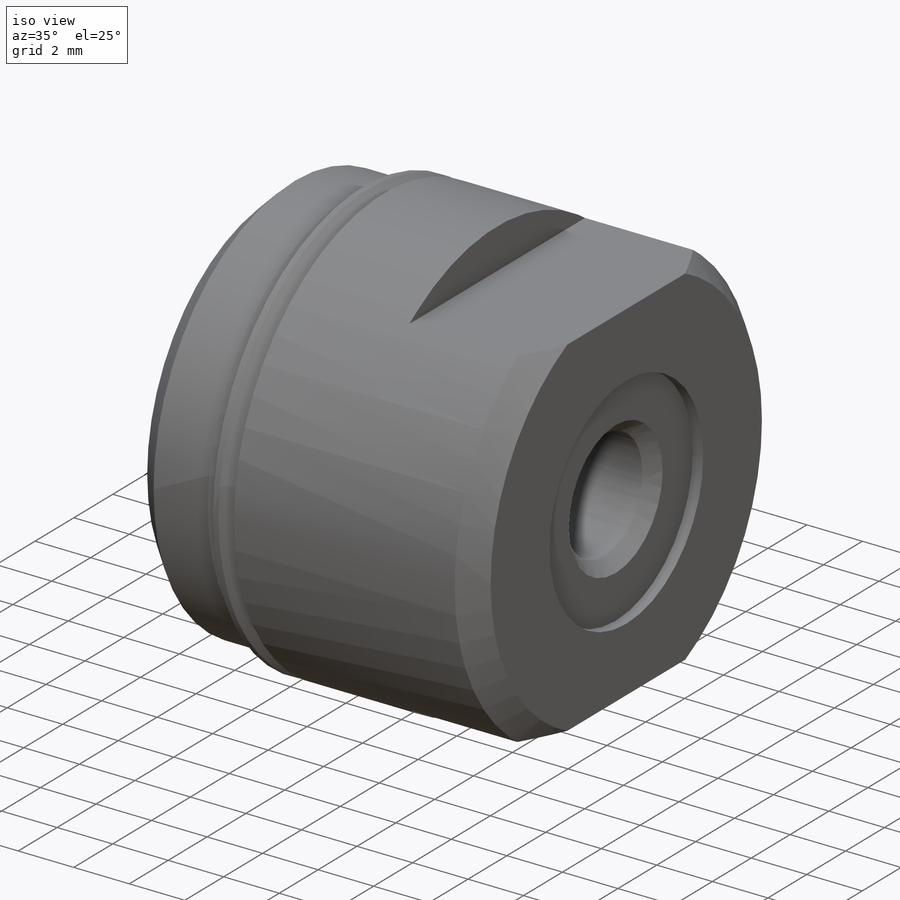
[diagram: iso view]
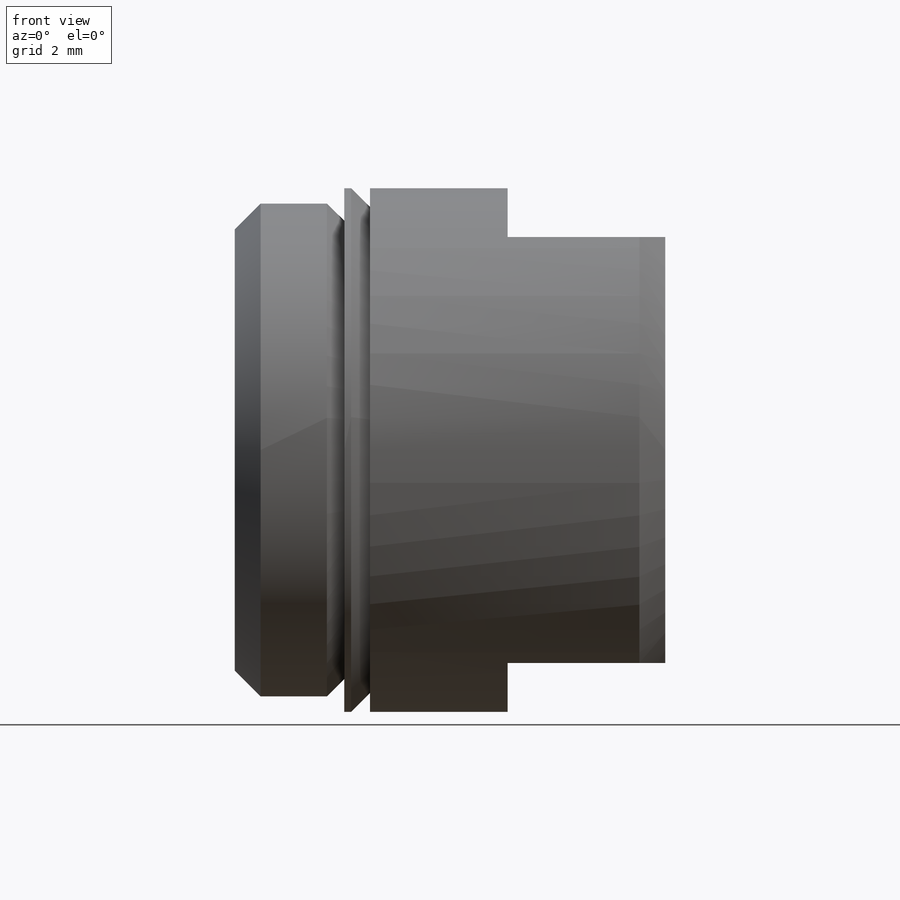
[diagram: front view]
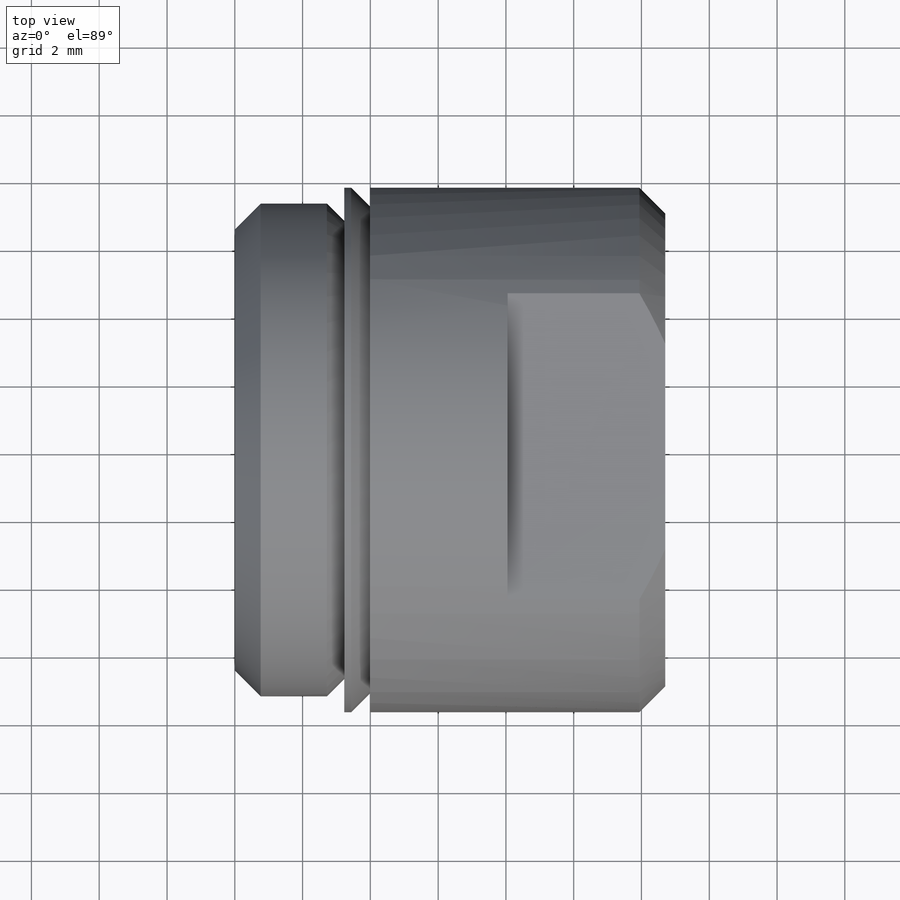
[diagram: top view]
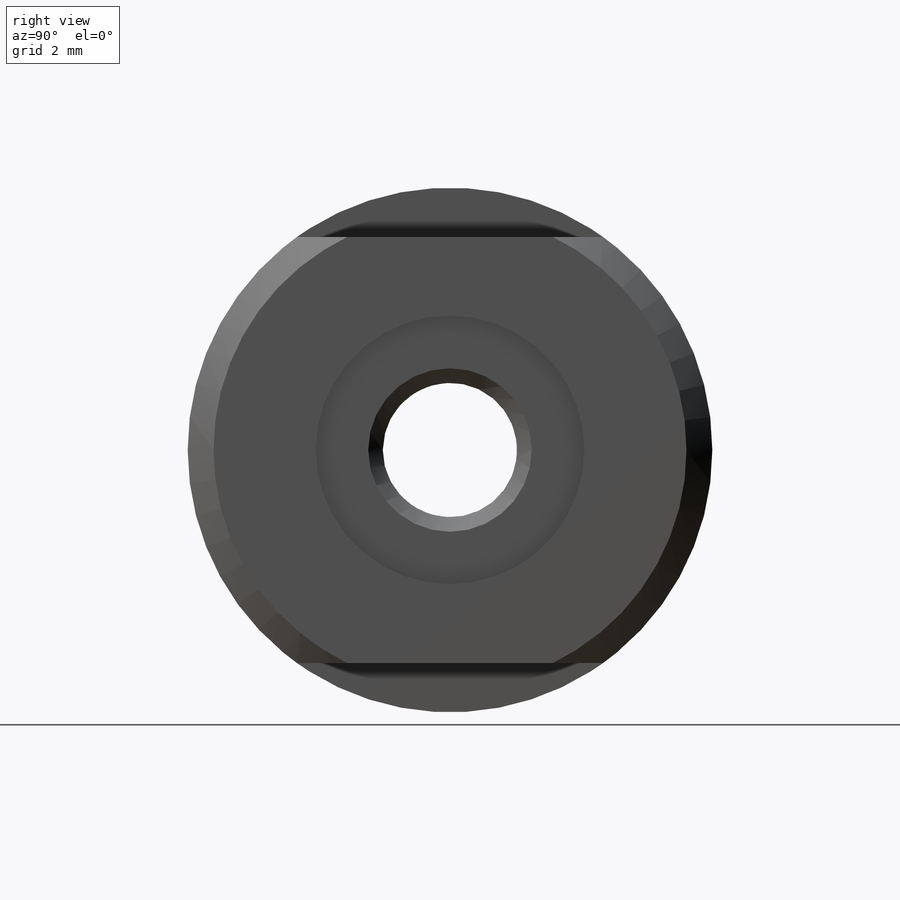
[diagram: right view]
SOLIDWORKS PART (.sldprt)
format: sldprt  version: not decoded by parser v0  size: 417,280 bytes
history: native  units: mm
features: plane x61, sketch x21, revolve x2, cut_revolve x2, material x1, thread x1, cut_extrude x1, extrude x1 (+61 scaffold rows collapsed)
feature tree (151):
  scaffold x61  (default folders/planes/origin — collapsed)
  material  "6061-T6 (SS)"
  sketch  "Sketch1"
  revolve  "Revolve1"  Angle=360deg
  sketch  "Sketch2"
  cut_revolve  "Cut-Revolve1"  Angle=360deg
  sketch  "Sketch3"
  cut_revolve  "Cut-Revolve2"  [1 undecoded]
  thread  "Cosmetic Thread1"  Diameter=5.08mm  [1 undecoded]
  plane  "Plane1"  Offset=12.7mm
  sketch  "Sketch4"
  cut_extrude  "Cut-Extrude1"  Depth=4.6482mm
  plane  "Plane2"  Offset=13.5128mm
  plane  "Plane3"
  plane  "Plane4"  Offset=10.3124mm
  plane  "Plane5"  Offset=3.3528mm
  sketch  "Sketch5"
  revolve  "Revolve2"  Angle=360deg
  plane  "Plane6"  Offset=12.827mm
  plane  "Plane7"  Offset=0mm
  plane  "Plane8"  Offset=8.0518mm
  plane  "Plane9"  Offset=12.7mm
  plane  "Plane10"  Offset=0mm
  plane  "Plane11"
  plane  "Plane12"  Offset=0mm
  plane  "Plane13"  Offset=13.5128mm
  extrude  "Folder1___EndTag___"  [1 undecoded]
  plane  "cut1 XY"
  plane  "cut1 XZ"
  plane  "cut1 YZ"
  sketch  "cut1"
  plane  "cut2 XY"
  plane  "cut2 XZ"
  plane  "cut2 YZ"
  sketch  "cut2"
  plane  "cutf1 XY"
  plane  "cutf1 XZ"
  plane  "cutf1 YZ"
  sketch  "cutf1"
  plane  "cutf2 XY"
  plane  "cutf2 XZ"
  plane  "cutf2 YZ"
  sketch  "cutf2"
  plane  "lovra XY"
  plane  "lovra XZ"
  plane  "lovra YZ"
  sketch  "lovra"
  plane  "lovra1 XY"
  plane  "lovra1 XZ"
  plane  "lovra1 YZ"
  sketch  "lovra1"
  plane  "lovra2 XY"
  plane  "lovra2 XZ"
  plane  "lovra2 YZ"
  sketch  "lovra2"
  plane  "lovra21 XY"
  plane  "lovra21 XZ"
  plane  "lovra21 YZ"
  sketch  "lovra21"
  plane  "lovra22 XY"
  plane  "lovra22 XZ"
  plane  "lovra22 YZ"
  sketch  "lovra22"
  plane  "lovra3 XY"
  plane  "lovra3 XZ"
  plane  "lovra3 YZ"
  sketch  "lovra3"
  plane  "olen XY"
  plane  "olen XZ"
  plane  "olen YZ"
  sketch  "olen"
  plane  "to_mounting_bracket XY"
  plane  "to_mounting_bracket XZ"
  plane  "to_mounting_bracket YZ"
  sketch  "to_mounting_bracket"
  plane  "to_nut XY"
  plane  "to_nut XZ"
  plane  "to_nut YZ"
  sketch  "to_nut"
  plane  "to_pin XY"
  plane  "to_pin XZ"
  plane  "to_pin YZ"
  sketch  "to_pin"
  plane  "to_screw XY"
  plane  "to_screw XZ"
  plane  "to_screw YZ"
  sketch  "to_screw"
  plane  "to_tube XY"
  plane  "to_tube XZ"
  plane  "to_tube YZ"
  sketch  "to_tube"
decode coverage: 5 of 28 modeling features carry decoded parameters
note: 3 parameter values undecoded
note: suppression state not decoded; provenance and decode notes live in map.json
